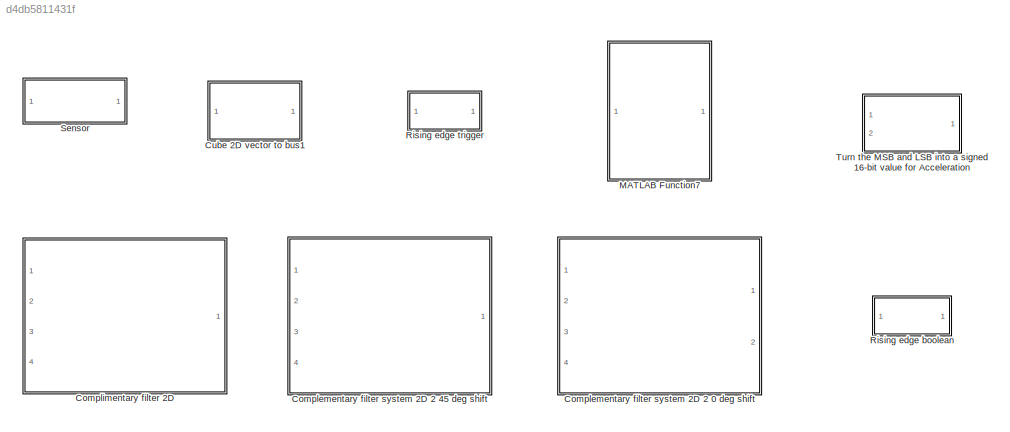
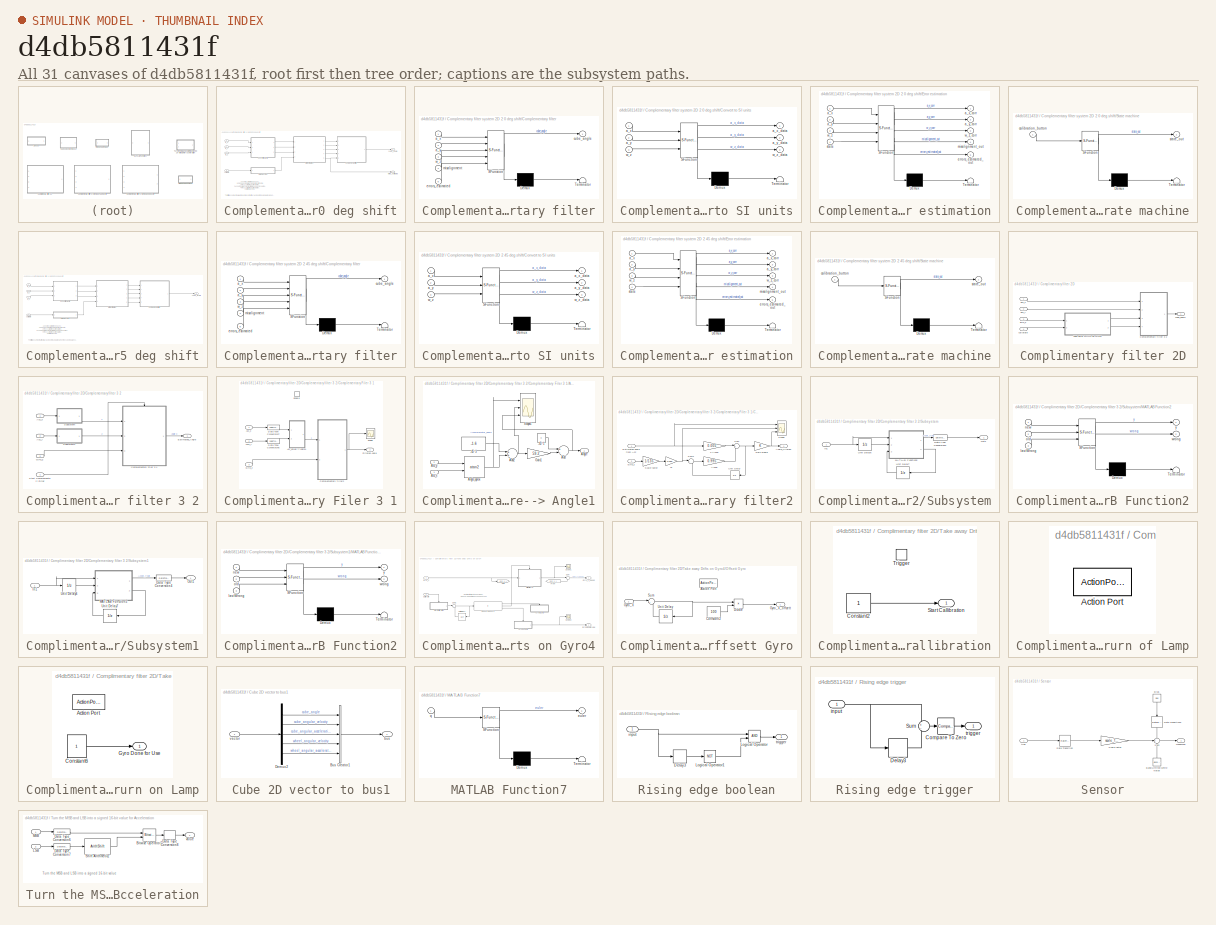
[diagram: thumbnail index - all 31 canvases of the model, root first then tree order]
MODEL slx_d4db5811431f
KIND library
CONFIG AbsTol = auto
CONFIG EnableMultiTasking = on
CONFIG FixedStep = auto
CONFIG MaxStep = auto
CONFIG MinStep = auto
CONFIG RelTol = 1e-3
CONFIG SampleTimeConstraint = Unconstrained
CONFIG Solver = VariableStepAuto
CONFIG SolverName = VariableStepAuto
CONFIG StartTime = 0.0
CONFIG StopTime = 10.0
BLOCK [SubSystem] Complementary filter system 2D 2 0 deg shift
  Ports = [4, 2]
  RequestExecContextInheritance = off
  Variant = off
BLOCK [SubSystem] Complementary filter system 2D 2 0 deg shift/Complementary filter
  ErrorFcn = Stateflow.Translate.translate
  PermitHierarchicalResolution = ExplicitOnly
  Ports = [5, 1]
  RequestExecContextInheritance = off
  SFBlockType = MATLAB Function
  TreatAsAtomicUnit = on
  Variant = off
BLOCK [Demux] Complementary filter system 2D 2 0 deg shift/Complementary filter/ Demux 
  Outputs = 1
  Ports = [1, 1]
BLOCK [S-Function] Complementary filter system 2D 2 0 deg shift/Complementary filter/ SFunction 
  EnableBusSupport = off
  FunctionName = sf_sfun
  PortCounts = [5 2]
  Ports = [5, 2]
  SFcnIsStateOwnerBlock = off
  SFunctionDeploymentMode = off
  Tag = Stateflow S-Function cube_lib 3
BLOCK [Terminator] Complementary filter system 2D 2 0 deg shift/Complementary filter/ Terminator 
BLOCK [Inport] Complementary filter system 2D 2 0 deg shift/Complementary filter/a_x
  IconDisplay = Port number
BLOCK [Inport] Complementary filter system 2D 2 0 deg shift/Complementary filter/a_y
  IconDisplay = Port number
  Port = 2
BLOCK [Outport] Complementary filter system 2D 2 0 deg shift/Complementary filter/cube_angle
  IconDisplay = Port number
BLOCK [Inport] Complementary filter system 2D 2 0 deg shift/Complementary filter/errors_estimated
  IconDisplay = Port number
  Port = 5
BLOCK [Inport] Complementary filter system 2D 2 0 deg shift/Complementary filter/misalignment
  IconDisplay = Port number
  Port = 4
BLOCK [Inport] Complementary filter system 2D 2 0 deg shift/Complementary filter/w_z
  IconDisplay = Port number
  Port = 3
BLOCK [SubSystem] Complementary filter system 2D 2 0 deg shift/Convert to SI units
  ErrorFcn = Stateflow.Translate.translate
  PermitHierarchicalResolution = ExplicitOnly
  Ports = [3, 3]
  RequestExecContextInheritance = off
  SFBlockType = MATLAB Function
  TreatAsAtomicUnit = on
  Variant = off
BLOCK [Demux] Complementary filter system 2D 2 0 deg shift/Convert to SI units/ Demux 
  Outputs = 1
  Ports = [1, 1]
BLOCK [S-Function] Complementary filter system 2D 2 0 deg shift/Convert to SI units/ SFunction 
  EnableBusSupport = off
  FunctionName = sf_sfun
  Parameters = deg_
  PortCounts = [3 4]
  Ports = [3, 4]
  SFcnIsStateOwnerBlock = off
  SFunctionDeploymentMode = off
  Tag = Stateflow S-Function cube_lib 4
BLOCK [Terminator] Complementary filter system 2D 2 0 deg shift/Convert to SI units/ Terminator 
BLOCK [Inport] Complementary filter system 2D 2 0 deg shift/Convert to SI units/a_x
  IconDisplay = Port number
BLOCK [Outport] Complementary filter system 2D 2 0 deg shift/Convert to SI units/a_x_data
  IconDisplay = Port number
BLOCK [Inport] Complementary filter system 2D 2 0 deg shift/Convert to SI units/a_y
  IconDisplay = Port number
  Port = 2
BLOCK [Outport] Complementary filter system 2D 2 0 deg shift/Convert to SI units/a_y_data
  IconDisplay = Port number
  Port = 2
BLOCK [Inport] Complementary filter system 2D 2 0 deg shift/Convert to SI units/w_z
  IconDisplay = Port number
  Port = 3
BLOCK [Outport] Complementary filter system 2D 2 0 deg shift/Convert to SI units/w_z_data
  IconDisplay = Port number
  Port = 3
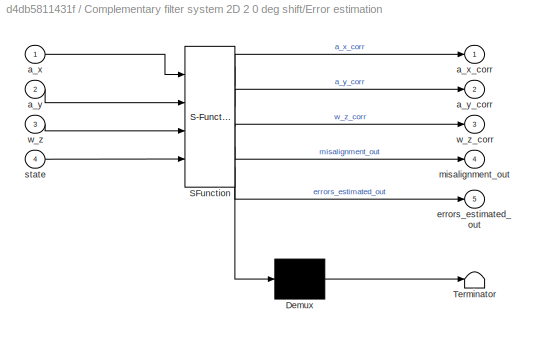
BLOCK [SubSystem] Complementary filter system 2D 2 0 deg shift/Error estimation
  ErrorFcn = Stateflow.Translate.translate
  PermitHierarchicalResolution = ExplicitOnly
  Ports = [4, 5]
  RequestExecContextInheritance = off
  SFBlockType = MATLAB Function
  TreatAsAtomicUnit = on
  Variant = off
BLOCK [Demux] Complementary filter system 2D 2 0 deg shift/Error estimation/ Demux 
  Outputs = 1
  Ports = [1, 1]
BLOCK [S-Function] Complementary filter system 2D 2 0 deg shift/Error estimation/ SFunction 
  EnableBusSupport = off
  FunctionName = sf_sfun
  PortCounts = [4 6]
  Ports = [4, 6]
  SFcnIsStateOwnerBlock = off
  SFunctionDeploymentMode = off
  Tag = Stateflow S-Function cube_lib 5
BLOCK [Terminator] Complementary filter system 2D 2 0 deg shift/Error estimation/ Terminator 
BLOCK [Inport] Complementary filter system 2D 2 0 deg shift/Error estimation/a_x
  IconDisplay = Port number
BLOCK [Outport] Complementary filter system 2D 2 0 deg shift/Error estimation/a_x_corr
  IconDisplay = Port number
BLOCK [Inport] Complementary filter system 2D 2 0 deg shift/Error estimation/a_y
  IconDisplay = Port number
  Port = 2
BLOCK [Outport] Complementary filter system 2D 2 0 deg shift/Error estimation/a_y_corr
  IconDisplay = Port number
  Port = 2
BLOCK [Outport] Complementary filter system 2D 2 0 deg shift/Error estimation/errors_estimated_out
  IconDisplay = Port number
  Port = 5
BLOCK [Outport] Complementary filter system 2D 2 0 deg shift/Error estimation/misalignment_out
  IconDisplay = Port number
  Port = 4
BLOCK [Inport] Complementary filter system 2D 2 0 deg shift/Error estimation/state
  IconDisplay = Port number
  Port = 4
BLOCK [Inport] Complementary filter system 2D 2 0 deg shift/Error estimation/w_z
  IconDisplay = Port number
  Port = 3
BLOCK [Outport] Complementary filter system 2D 2 0 deg shift/Error estimation/w_z_corr
  IconDisplay = Port number
  Port = 3
BLOCK [SubSystem] Complementary filter system 2D 2 0 deg shift/State machine
  ErrorFcn = Stateflow.Translate.translate
  PermitHierarchicalResolution = ExplicitOnly
  Ports = [1, 1]
  RequestExecContextInheritance = off
  SFBlockType = MATLAB Function
  TreatAsAtomicUnit = on
  Variant = off
BLOCK [Demux] Complementary filter system 2D 2 0 deg shift/State machine/ Demux 
  Outputs = 1
  Ports = [1, 1]
BLOCK [S-Function] Complementary filter system 2D 2 0 deg shift/State machine/ SFunction 
  EnableBusSupport = off
  FunctionName = sf_sfun
  PortCounts = [1 2]
  Ports = [1, 2]
  SFcnIsStateOwnerBlock = off
  SFunctionDeploymentMode = off
  Tag = Stateflow S-Function cube_lib 6
BLOCK [Terminator] Complementary filter system 2D 2 0 deg shift/State machine/ Terminator 
BLOCK [Inport] Complementary filter system 2D 2 0 deg shift/State machine/calibration_button
  IconDisplay = Port number
BLOCK [Outport] Complementary filter system 2D 2 0 deg shift/State machine/state_out
  IconDisplay = Port number
BLOCK [Inport] Complementary filter system 2D 2 0 deg shift/a_x
  IconDisplay = Port number
BLOCK [Inport] Complementary filter system 2D 2 0 deg shift/a_y
  IconDisplay = Port number
  Port = 2
BLOCK [Inport] Complementary filter system 2D 2 0 deg shift/calibrate
  IconDisplay = Port number
  Port = 4
BLOCK [Outport] Complementary filter system 2D 2 0 deg shift/cube_angle
  IconDisplay = Port number
BLOCK [Outport] Complementary filter system 2D 2 0 deg shift/errors_estimated
  IconDisplay = Port number
  Port = 2
BLOCK [Inport] Complementary filter system 2D 2 0 deg shift/w_z
  IconDisplay = Port number
  Port = 3
BLOCK [SubSystem] Complementary filter system 2D 2 45 deg shift
  Ports = [4, 1]
  RequestExecContextInheritance = off
  Variant = off
BLOCK [SubSystem] Complementary filter system 2D 2 45 deg shift/Complementary filter
  ErrorFcn = Stateflow.Translate.translate
  PermitHierarchicalResolution = ExplicitOnly
  Ports = [5, 1]
  RequestExecContextInheritance = off
  SFBlockType = MATLAB Function
  TreatAsAtomicUnit = on
  Variant = off
BLOCK [Demux] Complementary filter system 2D 2 45 deg shift/Complementary filter/ Demux 
  Outputs = 1
  Ports = [1, 1]
BLOCK [S-Function] Complementary filter system 2D 2 45 deg shift/Complementary filter/ SFunction 
  EnableBusSupport = off
  FunctionName = sf_sfun
  PortCounts = [5 2]
  Ports = [5, 2]
  SFcnIsStateOwnerBlock = off
  SFunctionDeploymentMode = off
  Tag = Stateflow S-Function cube_lib 10
BLOCK [Terminator] Complementary filter system 2D 2 45 deg shift/Complementary filter/ Terminator 
BLOCK [Inport] Complementary filter system 2D 2 45 deg shift/Complementary filter/a_x
  IconDisplay = Port number
BLOCK [Inport] Complementary filter system 2D 2 45 deg shift/Complementary filter/a_y
  IconDisplay = Port number
  Port = 2
BLOCK [Outport] Complementary filter system 2D 2 45 deg shift/Complementary filter/cube_angle
  IconDisplay = Port number
BLOCK [Inport] Complementary filter system 2D 2 45 deg shift/Complementary filter/errors_estimated
  IconDisplay = Port number
  Port = 5
BLOCK [Inport] Complementary filter system 2D 2 45 deg shift/Complementary filter/misalignment
  IconDisplay = Port number
  Port = 4
BLOCK [Inport] Complementary filter system 2D 2 45 deg shift/Complementary filter/w_z
  IconDisplay = Port number
  Port = 3
BLOCK [SubSystem] Complementary filter system 2D 2 45 deg shift/Convert to SI units
  ErrorFcn = Stateflow.Translate.translate
  PermitHierarchicalResolution = ExplicitOnly
  Ports = [3, 3]
  RequestExecContextInheritance = off
  SFBlockType = MATLAB Function
  TreatAsAtomicUnit = on
  Variant = off
BLOCK [Demux] Complementary filter system 2D 2 45 deg shift/Convert to SI units/ Demux 
  Outputs = 1
  Ports = [1, 1]
BLOCK [S-Function] Complementary filter system 2D 2 45 deg shift/Convert to SI units/ SFunction 
  EnableBusSupport = off
  FunctionName = sf_sfun
  PortCounts = [3 4]
  Ports = [3, 4]
  SFcnIsStateOwnerBlock = off
  SFunctionDeploymentMode = off
  Tag = Stateflow S-Function cube_lib 11
BLOCK [Terminator] Complementary filter system 2D 2 45 deg shift/Convert to SI units/ Terminator 
BLOCK [Inport] Complementary filter system 2D 2 45 deg shift/Convert to SI units/a_x
  IconDisplay = Port number
BLOCK [Outport] Complementary filter system 2D 2 45 deg shift/Convert to SI units/a_x_data
  IconDisplay = Port number
BLOCK [Inport] Complementary filter system 2D 2 45 deg shift/Convert to SI units/a_y
  IconDisplay = Port number
  Port = 2
BLOCK [Outport] Complementary filter system 2D 2 45 deg shift/Convert to SI units/a_y_data
  IconDisplay = Port number
  Port = 2
BLOCK [Inport] Complementary filter system 2D 2 45 deg shift/Convert to SI units/w_z
  IconDisplay = Port number
  Port = 3
BLOCK [Outport] Complementary filter system 2D 2 45 deg shift/Convert to SI units/w_z_data
  IconDisplay = Port number
  Port = 3
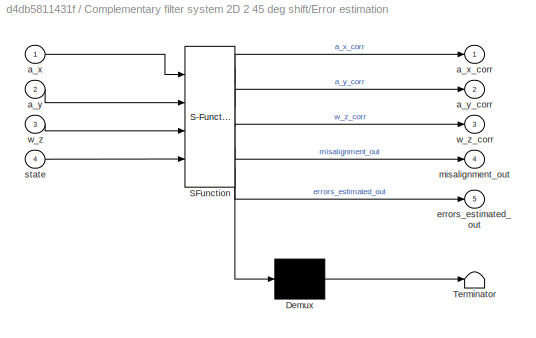
BLOCK [SubSystem] Complementary filter system 2D 2 45 deg shift/Error estimation
  ErrorFcn = Stateflow.Translate.translate
  PermitHierarchicalResolution = ExplicitOnly
  Ports = [4, 5]
  RequestExecContextInheritance = off
  SFBlockType = MATLAB Function
  TreatAsAtomicUnit = on
  Variant = off
BLOCK [Demux] Complementary filter system 2D 2 45 deg shift/Error estimation/ Demux 
  Outputs = 1
  Ports = [1, 1]
BLOCK [S-Function] Complementary filter system 2D 2 45 deg shift/Error estimation/ SFunction 
  EnableBusSupport = off
  FunctionName = sf_sfun
  PortCounts = [4 6]
  Ports = [4, 6]
  SFcnIsStateOwnerBlock = off
  SFunctionDeploymentMode = off
  Tag = Stateflow S-Function cube_lib 12
BLOCK [Terminator] Complementary filter system 2D 2 45 deg shift/Error estimation/ Terminator 
BLOCK [Inport] Complementary filter system 2D 2 45 deg shift/Error estimation/a_x
  IconDisplay = Port number
BLOCK [Outport] Complementary filter system 2D 2 45 deg shift/Error estimation/a_x_corr
  IconDisplay = Port number
BLOCK [Inport] Complementary filter system 2D 2 45 deg shift/Error estimation/a_y
  IconDisplay = Port number
  Port = 2
BLOCK [Outport] Complementary filter system 2D 2 45 deg shift/Error estimation/a_y_corr
  IconDisplay = Port number
  Port = 2
BLOCK [Outport] Complementary filter system 2D 2 45 deg shift/Error estimation/errors_estimated_out
  IconDisplay = Port number
  Port = 5
BLOCK [Outport] Complementary filter system 2D 2 45 deg shift/Error estimation/misalignment_out
  IconDisplay = Port number
  Port = 4
BLOCK [Inport] Complementary filter system 2D 2 45 deg shift/Error estimation/state
  IconDisplay = Port number
  Port = 4
BLOCK [Inport] Complementary filter system 2D 2 45 deg shift/Error estimation/w_z
  IconDisplay = Port number
  Port = 3
BLOCK [Outport] Complementary filter system 2D 2 45 deg shift/Error estimation/w_z_corr
  IconDisplay = Port number
  Port = 3
BLOCK [SubSystem] Complementary filter system 2D 2 45 deg shift/State machine
  ErrorFcn = Stateflow.Translate.translate
  PermitHierarchicalResolution = ExplicitOnly
  Ports = [1, 1]
  RequestExecContextInheritance = off
  SFBlockType = MATLAB Function
  TreatAsAtomicUnit = on
  Variant = off
BLOCK [Demux] Complementary filter system 2D 2 45 deg shift/State machine/ Demux 
  Outputs = 1
  Ports = [1, 1]
BLOCK [S-Function] Complementary filter system 2D 2 45 deg shift/State machine/ SFunction 
  EnableBusSupport = off
  FunctionName = sf_sfun
  PortCounts = [1 2]
  Ports = [1, 2]
  SFcnIsStateOwnerBlock = off
  SFunctionDeploymentMode = off
  Tag = Stateflow S-Function cube_lib 13
BLOCK [Terminator] Complementary filter system 2D 2 45 deg shift/State machine/ Terminator 
BLOCK [Inport] Complementary filter system 2D 2 45 deg shift/State machine/calibration_button
  IconDisplay = Port number
BLOCK [Outport] Complementary filter system 2D 2 45 deg shift/State machine/state_out
  IconDisplay = Port number
BLOCK [Inport] Complementary filter system 2D 2 45 deg shift/a_x
  IconDisplay = Port number
BLOCK [Inport] Complementary filter system 2D 2 45 deg shift/a_y
  IconDisplay = Port number
  Port = 2
BLOCK [Inport] Complementary filter system 2D 2 45 deg shift/calibrate
  IconDisplay = Port number
  Port = 4
BLOCK [Outport] Complementary filter system 2D 2 45 deg shift/cube_angle
  IconDisplay = Port number
BLOCK [Inport] Complementary filter system 2D 2 45 deg shift/w_z
  IconDisplay = Port number
  Port = 3
BLOCK [SubSystem] Complimentary filter 2D
  Ports = [4, 1]
  RequestExecContextInheritance = off
  Variant = off
BLOCK [SubSystem] Complimentary filter 2D/Complementary filter 3 2
  Ports = [4, 1]
  RequestExecContextInheritance = off
  Variant = off
BLOCK [Inport] Complimentary filter 2D/Complementary filter 3 2/Acc_x
  IconDisplay = Port number
BLOCK [Inport] Complimentary filter 2D/Complementary filter 3 2/Acc_y
  IconDisplay = Port number
  Port = 2
BLOCK [SubSystem] Complimentary filter 2D/Complementary filter 3 2/Complementary Filer 3 1
  Ports = [3, 1, 1]
  RequestExecContextInheritance = off
  Variant = off
BLOCK [SubSystem] Complimentary filter 2D/Complementary filter 3 2/Complementary Filer 3 1/Acc_value--> Angle1
  Ports = [2, 1]
  RequestExecContextInheritance = off
  Variant = off
BLOCK [Constant] Complimentary filter 2D/Complementary filter 3 2/Complementary Filer 3 1/Acc_value--> Angle1/-45 °1
  Value = 0
BLOCK [Constant] Complimentary filter 2D/Complementary filter 3 2/Complementary Filer 3 1/Acc_value--> Angle1/-45 °3
  Value = -1.6
BLOCK [Inport] Complimentary filter 2D/Complementary filter 3 2/Complementary Filer 3 1/Acc_value--> Angle1/Acc_x
  IconDisplay = Port number
BLOCK [Inport] Complimentary filter 2D/Complementary filter 3 2/Complementary Filer 3 1/Acc_value--> Angle1/Acc_y
  IconDisplay = Port number
  Port = 2
BLOCK [Sum] Complimentary filter 2D/Complementary filter 3 2/Complementary Filer 3 1/Acc_value--> Angle1/Add
  InputSameDT = off
  Inputs = +-
  OutDataTypeStr = Inherit: Inherit via internal rule
  Ports = [2, 1]
  SaturateOnIntegerOverflow = off
BLOCK [Sum] Complimentary filter 2D/Complementary filter 3 2/Complementary Filer 3 1/Acc_value--> Angle1/Add2
  InputSameDT = off
  OutDataTypeStr = Inherit: Inherit via internal rule
  Ports = [2, 1]
  SaturateOnIntegerOverflow = off
BLOCK [Outport] Complimentary filter 2D/Complementary filter 3 2/Complementary Filer 3 1/Acc_value--> Angle1/Angle
  IconDisplay = Port number
BLOCK [Trigonometry] Complimentary filter 2D/Complementary filter 3 2/Complementary Filer 3 1/Acc_value--> Angle1/Angle_aprox
  Operator = atan2
  Ports = [2, 1]
BLOCK [Gain] Complimentary filter 2D/Complementary filter 3 2/Complementary Filer 3 1/Acc_value--> Angle1/Gain1
  Gain = 59.2
  OutDataTypeStr = Inherit: Inherit via internal rule
  ParamDataTypeStr = Inherit: Inherit via internal rule
  SaturateOnIntegerOverflow = off
BLOCK [Scope] Complimentary filter 2D/Complementary filter 3 2/Complementary Filer 3 1/Acc_value--> Angle1/Scope1
  NumInputPorts = 3
  Ports = [3]
  ScopeSpecificationString = Simulink.scopes.TimeScopeBlockCfg('CurrentConfiguration', extmgr.ConfigurationSet(extmgr.Configuration('Core','General UI',true),extmgr.Configuration('Core','Source UI',true),extmgr.Configuration('Sources','WiredSimulink',true,'DataLoggingVariableName','ScopeData3'),extmgr.Configuration('Visuals','Time Domain',true,'SerializedDisplays',{struct('MinYLimReal','-82.06686','MaxYLimReal','269.34822','Y...<+1440ch>
BLOCK [Inport] Complimentary filter 2D/Complementary filter 3 2/Complementary Filer 3 1/Acc_x
  IconDisplay = Port number
BLOCK [Inport] Complimentary filter 2D/Complementary filter 3 2/Complementary Filer 3 1/Axcc_y
  IconDisplay = Port number
  Port = 2
BLOCK [SubSystem] Complimentary filter 2D/Complementary filter 3 2/Complementary Filer 3 1/Complementary filter2
  Ports = [2, 1]
  RequestExecContextInheritance = off
  Variant = off
BLOCK [Gain] Complimentary filter 2D/Complementary filter 3 2/Complementary Filer 3 1/Complementary filter2/1-Alpha
  Gain = 0.005
  OutDataTypeStr = Inherit: Inherit via internal rule
  ParamDataTypeStr = Inherit: Inherit via internal rule
  SaturateOnIntegerOverflow = off
BLOCK [Gain] Complimentary filter 2D/Complementary filter 3 2/Complementary Filer 3 1/Complementary filter2/Alpha
  Gain = 0.995
  OutDataTypeStr = Inherit: Inherit via internal rule
  ParamDataTypeStr = Inherit: Inherit via internal rule
  SaturateOnIntegerOverflow = off
BLOCK [Outport] Complimentary filter 2D/Complementary filter 3 2/Complementary Filer 3 1/Complementary filter2/Angle_filtered
  IconDisplay = Port number
BLOCK [Inport] Complimentary filter 2D/Complementary filter 3 2/Complementary Filer 3 1/Complementary filter2/Estimated angle from Acc
  IconDisplay = Port number
BLOCK [Gain] Complimentary filter 2D/Complementary filter 3 2/Complementary Filer 3 1/Complementary filter2/Gain weard
  OutDataTypeStr = Inherit: Inherit via internal rule
  ParamDataTypeStr = Inherit: Inherit via internal rule
  SaturateOnIntegerOverflow = off
BLOCK [Inport] Complimentary filter 2D/Complementary filter 3 2/Complementary Filer 3 1/Complementary filter2/Gyro_z
  IconDisplay = Port number
  Port = 2
BLOCK [Gain] Complimentary filter 2D/Complementary filter 3 2/Complementary Filer 3 1/Complementary filter2/Scale factor
  Gain = 1/135
  OutDataTypeStr = Inherit: Inherit via internal rule
  ParamDataTypeStr = Inherit: Inherit via internal rule
  SaturateOnIntegerOverflow = off
BLOCK [Scope] Complimentary filter 2D/Complementary filter 3 2/Complementary Filer 3 1/Complementary filter2/Scope
  NumInputPorts = 3
  Ports = [3]
  ScopeSpecificationString = Simulink.scopes.TimeScopeBlockCfg('CurrentConfiguration', extmgr.ConfigurationSet(extmgr.Configuration('Core','General UI',true),extmgr.Configuration('Core','Source UI',true),extmgr.Configuration('Sources','WiredSimulink',true,'DataLoggingVariableName','ScopeData2'),extmgr.Configuration('Visuals','Time Domain',true,'SerializedDisplays',{struct('MinYLimReal','-82.06686','MaxYLimReal','269.34822','Y...<+1483ch>
BLOCK [Sum] Complimentary filter 2D/Complementary filter 3 2/Complementary Filer 3 1/Complementary filter2/Sum
  IconShape = round
  InputSameDT = off
  Inputs = |++
  OutDataTypeStr = Inherit: Inherit via internal rule
  Ports = [2, 1]
  SaturateOnIntegerOverflow = off
BLOCK [Sum] Complimentary filter 2D/Complementary filter 3 2/Complementary Filer 3 1/Complementary filter2/Sum1
  IconShape = round
  InputSameDT = off
  Inputs = |++
  OutDataTypeStr = Inherit: Inherit via internal rule
  Ports = [2, 1]
  SaturateOnIntegerOverflow = off
BLOCK [Gain] Complimentary filter 2D/Complementary filter 3 2/Complementary Filer 3 1/Complementary filter2/Ts
  Gain = 0.002
  OutDataTypeStr = Inherit: Inherit via internal rule
  ParamDataTypeStr = Inherit: Inherit via internal rule
  SaturateOnIntegerOverflow = off
BLOCK [UnitDelay] Complimentary filter 2D/Complementary filter 3 2/Complementary Filer 3 1/Complementary filter2/Unit Delay
  InputProcessing = Elements as channels (sample based)
  SampleTime = -1
BLOCK [DataTypeConversion] Complimentary filter 2D/Complementary filter 3 2/Complementary Filer 3 1/Data Type Conversion5
  RndMeth = Floor
  SaturateOnIntegerOverflow = off
BLOCK [DataTypeConversion] Complimentary filter 2D/Complementary filter 3 2/Complementary Filer 3 1/Data Type Conversion7
  RndMeth = Floor
  SaturateOnIntegerOverflow = off
BLOCK [EnablePort] Complimentary filter 2D/Complementary filter 3 2/Complementary Filer 3 1/Enable
  Ports = []
  StatesWhenEnabling = reset
BLOCK [Outport] Complimentary filter 2D/Complementary filter 3 2/Complementary Filer 3 1/Filtered Angle
  IconDisplay = Port number
  InitialOutput = [0]
  OutputWhenDisabled = reset
BLOCK [Inport] Complimentary filter 2D/Complementary filter 3 2/Complementary Filer 3 1/Gyro_z
  IconDisplay = Port number
  Port = 3
BLOCK [Scope] Complimentary filter 2D/Complementary filter 3 2/Complementary Filer 3 1/Scope
  NumInputPorts = 1
  Ports = [1]
  ScopeSpecificationString = Simulink.scopes.TimeScopeBlockCfg('CurrentConfiguration', extmgr.ConfigurationSet(extmgr.Configuration('Core','General UI',true),extmgr.Configuration('Core','Source UI',true),extmgr.Configuration('Sources','WiredSimulink',true,'DataLoggingVariableName','ScopeData2'),extmgr.Configuration('Visuals','Time Domain',true,'SerializedDisplays',{struct('MinYLimReal','-60.84821','MaxYLimReal','99.99965','YL...<+1457ch>
BLOCK [Outport] Complimentary filter 2D/Complementary filter 3 2/Estimated_Angle
  IconDisplay = Port number
BLOCK [Inport] Complimentary filter 2D/Complementary filter 3 2/Gyro_z
  IconDisplay = Port number
  Port = 3
BLOCK [Inport] Complimentary filter 2D/Complementary filter 3 2/Start Complementary Filter 
  IconDisplay = Port number
  Port = 4
BLOCK [SubSystem] Complimentary filter 2D/Complementary filter 3 2/Subsystem
  Ports = [1, 1]
  RequestExecContextInheritance = off
  Variant = off
BLOCK [DataTypeConversion] Complimentary filter 2D/Complementary filter 3 2/Subsystem/Data Type Conversion4
  RndMeth = Floor
  SaturateOnIntegerOverflow = off
BLOCK [Inport] Complimentary filter 2D/Complementary filter 3 2/Subsystem/In1
  IconDisplay = Port number
BLOCK [SubSystem] Complimentary filter 2D/Complementary filter 3 2/Subsystem/MATLAB Function2
  ErrorFcn = Stateflow.Translate.translate
  PermitHierarchicalResolution = ExplicitOnly
  Ports = [3, 2]
  RequestExecContextInheritance = off
  SFBlockType = MATLAB Function
  TreatAsAtomicUnit = on
  Variant = off
BLOCK [Demux] Complimentary filter 2D/Complementary filter 3 2/Subsystem/MATLAB Function2/ Demux 
  Outputs = 1
  Ports = [1, 1]
BLOCK [S-Function] Complimentary filter 2D/Complementary filter 3 2/Subsystem/MATLAB Function2/ SFunction 
  EnableBusSupport = off
  FunctionName = sf_sfun
  PortCounts = [3 3]
  Ports = [3, 3]
  SFcnIsStateOwnerBlock = off
  SFunctionDeploymentMode = off
  Tag = Stateflow S-Function cube_lib 18
BLOCK [Terminator] Complimentary filter 2D/Complementary filter 3 2/Subsystem/MATLAB Function2/ Terminator 
BLOCK [Inport] Complimentary filter 2D/Complementary filter 3 2/Subsystem/MATLAB Function2/lastWrong
  IconDisplay = Port number
  Port = 3
BLOCK [Inport] Complimentary filter 2D/Complementary filter 3 2/Subsystem/MATLAB Function2/new
  IconDisplay = Port number
BLOCK [Inport] Complimentary filter 2D/Complementary filter 3 2/Subsystem/MATLAB Function2/old
  IconDisplay = Port number
  Port = 2
BLOCK [Outport] Complimentary filter 2D/Complementary filter 3 2/Subsystem/MATLAB Function2/wrong
  IconDisplay = Port number
  Port = 2
BLOCK [Outport] Complimentary filter 2D/Complementary filter 3 2/Subsystem/MATLAB Function2/y
  IconDisplay = Port number
BLOCK [Outport] Complimentary filter 2D/Complementary filter 3 2/Subsystem/Out1
  IconDisplay = Port number
BLOCK [UnitDelay] Complimentary filter 2D/Complementary filter 3 2/Subsystem/Unit Delay6
  InitialCondition = -40.45
  InputProcessing = Elements as channels (sample based)
  SampleTime = -1
BLOCK [UnitDelay] Complimentary filter 2D/Complementary filter 3 2/Subsystem/Unit Delay7
  InputProcessing = Elements as channels (sample based)
  SampleTime = -1
BLOCK [SubSystem] Complimentary filter 2D/Complementary filter 3 2/Subsystem1
  Ports = [1, 1]
  RequestExecContextInheritance = off
  Variant = off
BLOCK [DataTypeConversion] Complimentary filter 2D/Complementary filter 3 2/Subsystem1/Data Type Conversion4
  RndMeth = Floor
  SaturateOnIntegerOverflow = off
BLOCK [Inport] Complimentary filter 2D/Complementary filter 3 2/Subsystem1/In1
  IconDisplay = Port number
BLOCK [SubSystem] Complimentary filter 2D/Complementary filter 3 2/Subsystem1/MATLAB Function2
  ErrorFcn = Stateflow.Translate.translate
  PermitHierarchicalResolution = ExplicitOnly
  Ports = [3, 2]
  RequestExecContextInheritance = off
  SFBlockType = MATLAB Function
  TreatAsAtomicUnit = on
  Variant = off
BLOCK [Demux] Complimentary filter 2D/Complementary filter 3 2/Subsystem1/MATLAB Function2/ Demux 
  Outputs = 1
  Ports = [1, 1]
BLOCK [S-Function] Complimentary filter 2D/Complementary filter 3 2/Subsystem1/MATLAB Function2/ SFunction 
  EnableBusSupport = off
  FunctionName = sf_sfun
  PortCounts = [3 3]
  Ports = [3, 3]
  SFcnIsStateOwnerBlock = off
  SFunctionDeploymentMode = off
  Tag = Stateflow S-Function cube_lib 19
BLOCK [Terminator] Complimentary filter 2D/Complementary filter 3 2/Subsystem1/MATLAB Function2/ Terminator 
BLOCK [Inport] Complimentary filter 2D/Complementary filter 3 2/Subsystem1/MATLAB Function2/lastWrong
  IconDisplay = Port number
  Port = 3
BLOCK [Inport] Complimentary filter 2D/Complementary filter 3 2/Subsystem1/MATLAB Function2/new
  IconDisplay = Port number
BLOCK [Inport] Complimentary filter 2D/Complementary filter 3 2/Subsystem1/MATLAB Function2/old
  IconDisplay = Port number
  Port = 2
BLOCK [Outport] Complimentary filter 2D/Complementary filter 3 2/Subsystem1/MATLAB Function2/wrong
  IconDisplay = Port number
  Port = 2
BLOCK [Outport] Complimentary filter 2D/Complementary filter 3 2/Subsystem1/MATLAB Function2/y
  IconDisplay = Port number
BLOCK [Outport] Complimentary filter 2D/Complementary filter 3 2/Subsystem1/Out1
  IconDisplay = Port number
BLOCK [UnitDelay] Complimentary filter 2D/Complementary filter 3 2/Subsystem1/Unit Delay6
  InitialCondition = -40.45
  InputProcessing = Elements as channels (sample based)
  SampleTime = -1
BLOCK [UnitDelay] Complimentary filter 2D/Complementary filter 3 2/Subsystem1/Unit Delay7
  InputProcessing = Elements as channels (sample based)
  SampleTime = -1
BLOCK [SubSystem] Complimentary filter 2D/Take away Drifts on Gyro4
  Ports = [2, 2]
  RequestExecContextInheritance = off
  Variant = off
BLOCK [Inport] Complimentary filter 2D/Take away Drifts on Gyro4/Calibrate
  IconDisplay = Port number
  Port = 2
BLOCK [If] Complimentary filter 2D/Take away Drifts on Gyro4/Do average zero
  ElseIfExpressions = u1 >= 500 &  u1 <= 600
  IfExpression = u1 <= 499
  Ports = [1, 3]
BLOCK [From] Complimentary filter 2D/Take away Drifts on Gyro4/From
  GotoTag = Gyro_X_1
BLOCK [Goto] Complimentary filter 2D/Take away Drifts on Gyro4/Goto
  GotoTag = Gyro_X_1
BLOCK [Outport] Complimentary filter 2D/Take away Drifts on Gyro4/Gyro Done for Use
  IconDisplay = Port number
  Port = 2
BLOCK [Inport] Complimentary filter 2D/Take away Drifts on Gyro4/Gyro_z
  IconDisplay = Port number
BLOCK [Outport] Complimentary filter 2D/Take away Drifts on Gyro4/Gyro_z_based
  IconDisplay = Port number
BLOCK [SubSystem] Complimentary filter 2D/Take away Drifts on Gyro4/Offsett Gyro
  Ports = [1, 1, 0, 0, 0, 0, 0, 1]
  RequestExecContextInheritance = off
  Variant = off
BLOCK [ActionPort] Complimentary filter 2D/Take away Drifts on Gyro4/Offsett Gyro/Action Port
BLOCK [Constant] Complimentary filter 2D/Take away Drifts on Gyro4/Offsett Gyro/Constant2
  Value = 100
BLOCK [Product] Complimentary filter 2D/Take away Drifts on Gyro4/Offsett Gyro/Divide
  InputSameDT = off
  Inputs = */
  OutDataTypeStr = Inherit: Inherit via internal rule
  Ports = [2, 1]
  RndMeth = Floor
  SaturateOnIntegerOverflow = off
BLOCK [Inport] Complimentary filter 2D/Take away Drifts on Gyro4/Offsett Gyro/Gyro_X
  IconDisplay = Port number
BLOCK [Outport] Complimentary filter 2D/Take away Drifts on Gyro4/Offsett Gyro/Gyro_X_offsett
  IconDisplay = Port number
BLOCK [Sum] Complimentary filter 2D/Take away Drifts on Gyro4/Offsett Gyro/Sum
  IconShape = round
  InputSameDT = off
  Inputs = |++
  OutDataTypeStr = Inherit: Inherit via internal rule
  Ports = [2, 1]
  SaturateOnIntegerOverflow = off
BLOCK [UnitDelay] Complimentary filter 2D/Take away Drifts on Gyro4/Offsett Gyro/Unit Delay
  InputProcessing = Elements as channels (sample based)
  SampleTime = -1
BLOCK [Scope] Complimentary filter 2D/Take away Drifts on Gyro4/Scope1
  NumInputPorts = 1
  Ports = [1]
  ScopeSpecificationString = Simulink.scopes.TimeScopeBlockCfg('CurrentConfiguration', extmgr.ConfigurationSet(extmgr.Configuration('Core','General UI',true),extmgr.Configuration('Core','Source UI',true),extmgr.Configuration('Sources','WiredSimulink',true,'DataLoggingVariableName','ScopeData4'),extmgr.Configuration('Visuals','Time Domain',true,'SerializedDisplays',{struct('MinYLimReal','-1.00000','MaxYLimReal','1.00000','YLab...<+1444ch>
BLOCK [Scope] Complimentary filter 2D/Take away Drifts on Gyro4/Scope2
  NumInputPorts = 1
  Ports = [1]
  ScopeSpecificationString = Simulink.scopes.TimeScopeBlockCfg('CurrentConfiguration', extmgr.ConfigurationSet(extmgr.Configuration('Core','General UI',true),extmgr.Configuration('Core','Source UI',true),extmgr.Configuration('Sources','WiredSimulink',true,'DataLoggingVariableName','ScopeData5'),extmgr.Configuration('Visuals','Time Domain',true,'SerializedDisplays',{struct('MinYLimReal','-0.125','MaxYLimReal','1.125','YLabelRe...<+1359ch>
BLOCK [SubSystem] Complimentary filter 2D/Take away Drifts on Gyro4/Start Callibration
  Ports = [0, 1, 0, 1]
  RequestExecContextInheritance = off
  Variant = off
BLOCK [Constant] Complimentary filter 2D/Take away Drifts on Gyro4/Start Callibration/Constant2
BLOCK [Outport] Complimentary filter 2D/Take away Drifts on Gyro4/Start Callibration/Start Callibration
  IconDisplay = Port number
  InitialOutput = [0]
BLOCK [TriggerPort] Complimentary filter 2D/Take away Drifts on Gyro4/Start Callibration/Trigger
  PortDimensions = 1
  Ports = []
  StatesWhenEnabling = held
  VariantControl = Variant
BLOCK [Sum] Complimentary filter 2D/Take away Drifts on Gyro4/Sum
  IconShape = round
  InputSameDT = off
  Inputs = |-+
  OutDataTypeStr = Inherit: Inherit via internal rule
  Ports = [2, 1]
  SaturateOnIntegerOverflow = off
BLOCK [Sum] Complimentary filter 2D/Take away Drifts on Gyro4/Sum1
  IconShape = round
  InputSameDT = off
  Inputs = |++
  OutDataTypeStr = Inherit: Inherit via internal rule
  Ports = [2, 1]
  SaturateOnIntegerOverflow = off
BLOCK [SubSystem] Complimentary filter 2D/Take away Drifts on Gyro4/Turn of Lamp
  Ports = [0, 0, 0, 0, 0, 0, 0, 1]
  RequestExecContextInheritance = off
  Variant = off
BLOCK [ActionPort] Complimentary filter 2D/Take away Drifts on Gyro4/Turn of Lamp/Action Port
BLOCK [SubSystem] Complimentary filter 2D/Take away Drifts on Gyro4/Turn on Lamp
  Ports = [0, 1, 0, 0, 0, 0, 0, 1]
  RequestExecContextInheritance = off
  Variant = off
BLOCK [ActionPort] Complimentary filter 2D/Take away Drifts on Gyro4/Turn on Lamp/Action Port
BLOCK [Constant] Complimentary filter 2D/Take away Drifts on Gyro4/Turn on Lamp/Constant6
  SampleTime = -1
BLOCK [Outport] Complimentary filter 2D/Take away Drifts on Gyro4/Turn on Lamp/Gyro Done for Use
  IconDisplay = Port number
  InitialOutput = [0]
BLOCK [UnitDelay] Complimentary filter 2D/Take away Drifts on Gyro4/Unit Delay1
  InputProcessing = Elements as channels (sample based)
  SampleTime = -1
BLOCK [Inport] Complimentary filter 2D/acc_x
  IconDisplay = Port number
BLOCK [Inport] Complimentary filter 2D/acc_y
  IconDisplay = Port number
  Port = 2
BLOCK [Inport] Complimentary filter 2D/calibrate
  IconDisplay = Port number
  Port = 4
BLOCK [Outport] Complimentary filter 2D/cube_angle
  IconDisplay = Port number
BLOCK [Inport] Complimentary filter 2D/gyro_z
  IconDisplay = Port number
  Port = 3
BLOCK [SubSystem] Cube 2D vector to bus1
  Ports = [1, 1]
  RequestExecContextInheritance = off
  Variant = off
BLOCK [BusCreator] Cube 2D vector to bus1/Bus Creator1
  DisplayOption = bar
  InheritFromInputs = on
  Inputs = 5
  OutDataTypeStr = Bus: CubeStates2D
  Ports = [5, 1]
BLOCK [Demux] Cube 2D vector to bus1/Demux2
  DisplayOption = bar
  Outputs = 5
  Ports = [1, 5]
BLOCK [Outport] Cube 2D vector to bus1/bus
  IconDisplay = Port number
BLOCK [Inport] Cube 2D vector to bus1/vector
  IconDisplay = Port number
BLOCK [SubSystem] MATLAB Function7
  ErrorFcn = Stateflow.Translate.translate
  PermitHierarchicalResolution = ExplicitOnly
  Ports = [1, 1]
  RequestExecContextInheritance = off
  SFBlockType = MATLAB Function
  TreatAsAtomicUnit = on
  Variant = off
BLOCK [Demux] MATLAB Function7/ Demux 
  Outputs = 1
  Ports = [1, 1]
BLOCK [S-Function] MATLAB Function7/ SFunction 
  EnableBusSupport = off
  FunctionName = sf_sfun
  PortCounts = [1 2]
  Ports = [1, 2]
  SFcnIsStateOwnerBlock = off
  SFunctionDeploymentMode = off
  Tag = Stateflow S-Function cube_lib 27
BLOCK [Terminator] MATLAB Function7/ Terminator 
BLOCK [Outport] MATLAB Function7/euler
  IconDisplay = Port number
BLOCK [Inport] MATLAB Function7/q
  IconDisplay = Port number
BLOCK [SubSystem] Rising edge boolean
  Ports = [1, 1]
  RequestExecContextInheritance = off
  Variant = off
BLOCK [Delay] Rising edge boolean/Delay3
  DelayLength = 1
  InitialCondition = 0
  InputPortMap = u0
  Ports = [1, 1]
BLOCK [Logic] Rising edge boolean/Logical Operator
  AllPortsSameDT = off
  OutDataTypeStr = boolean
  Ports = [2, 1]
BLOCK [Logic] Rising edge boolean/Logical Operator1
  AllPortsSameDT = off
  Operator = NOT
  OutDataTypeStr = boolean
  Ports = [1, 1]
BLOCK [Inport] Rising edge boolean/input
  IconDisplay = Port number
BLOCK [Outport] Rising edge boolean/trigger
  IconDisplay = Port number
BLOCK [SubSystem] Rising edge trigger
  Ports = [1, 1]
  RequestExecContextInheritance = off
  Variant = off
BLOCK [Reference] Rising edge trigger/Compare To Zero  REF=simulink/Logic and Bit
Operations/Compare
To Zero
  Ports = [1, 1]
  SourceBlock = simulink/Logic and Bit\nOperations/Compare\nTo Zero
  SourceType = Compare To Zero
BLOCK [Delay] Rising edge trigger/Delay3
  DelayLength = 1
  InitialCondition = 0
  InputPortMap = u0
  Ports = [1, 1]
BLOCK [Sum] Rising edge trigger/Sum
  IconShape = round
  InputSameDT = off
  Inputs = +-
  OutDataTypeStr = Inherit: Inherit via internal rule
  Ports = [2, 1]
  SaturateOnIntegerOverflow = off
BLOCK [Inport] Rising edge trigger/input
  IconDisplay = Port number
BLOCK [Outport] Rising edge trigger/trigger
  IconDisplay = Port number
BLOCK [SubSystem] Sensor
  Ports = [1, 1]
  RequestExecContextInheritance = off
  Variant = off
BLOCK [Reference] Sensor/Band-Limited White Noise  REF=simulink/Sources/Band-Limited
White Noise
  Ports = [0, 1]
  SourceBlock = simulink/Sources/Band-Limited\nWhite Noise
  SourceType = Band-Limited White Noise.
BLOCK [Constant] Sensor/Bias
  Value = bias
BLOCK [RateTransition] Sensor/Rate Transition
  OutPortSampleTime = sample_time
BLOCK [RateTransition] Sensor/Rate Transition1
  OutPortSampleTime = sample_time
BLOCK [Gain] Sensor/Scale factor
  Gain = scale_factor
  OutDataTypeStr = Inherit: Inherit via internal rule
  ParamDataTypeStr = Inherit: Inherit via internal rule
  SaturateOnIntegerOverflow = off
BLOCK [Sum] Sensor/Sum
  IconShape = round
  InputSameDT = off
  Inputs = +++
  OutDataTypeStr = Inherit: Inherit via internal rule
  Ports = [3, 1]
  SaturateOnIntegerOverflow = off
BLOCK [Outport] Sensor/measured
  IconDisplay = Port number
BLOCK [Inport] Sensor/true
  IconDisplay = Port number
BLOCK [SubSystem] Turn the MSB and LSB into a signed 16-bit value for Acceleration
  Ports = [2, 1]
  RequestExecContextInheritance = off
  Variant = off
BLOCK [Reference] Turn the MSB and LSB into a signed 16-bit value for Acceleration/Bitwise Operator2  REF=simulink/Logic and Bit
Operations/Bitwise
Operator
  Ports = [2, 1]
  SourceBlock = simulink/Logic and Bit\nOperations/Bitwise\nOperator
  SourceType = Bitwise Operator
BLOCK [DataTypeConversion] Turn the MSB and LSB into a signed 16-bit value for Acceleration/Data Type Conversion6
  OutDataTypeStr = uint16
  RndMeth = Floor
  SaturateOnIntegerOverflow = off
BLOCK [DataTypeConversion] Turn the MSB and LSB into a signed 16-bit value for Acceleration/Data Type Conversion7
  OutDataTypeStr = uint16
  RndMeth = Floor
  SaturateOnIntegerOverflow = off
BLOCK [DataTypeConversion] Turn the MSB and LSB into a signed 16-bit value for Acceleration/Data Type Conversion8
  OutDataTypeStr = int16
  RndMeth = Floor
  SaturateOnIntegerOverflow = off
BLOCK [Inport] Turn the MSB and LSB into a signed 16-bit value for Acceleration/LSB
  IconDisplay = Port number
  Port = 2
BLOCK [Inport] Turn the MSB and LSB into a signed 16-bit value for Acceleration/MSB
  IconDisplay = Port number
BLOCK [ArithShift] Turn the MSB and LSB into a signed 16-bit value for Acceleration/Shift Arithmetic2
  BitShiftNumber = -8
  InputPortMap = u0
  Ports = [1, 1]
BLOCK [Outport] Turn the MSB and LSB into a signed 16-bit value for Acceleration/value
  IconDisplay = Port number
ANNOTATION Complementary filter system 2D 2 0 deg shift: This filter assumes the IMU is mounted so that the y-axis points downwards when the text MOTOR 3 is correctly horizontally aligned.
ANNOTATION Complementary filter system 2D 2 0 deg shift: Uses two calibration phases: 1. Put cube so that MOTOR 3 text is horizontal. 2. Press calibration button. Wait 3 s. 3. Looking at MOTOR 3 text, rotate 90 deg clockwise. 4. Press calibration button. Wait 3 s. 5. Start balancing.
ANNOTATION Complementary filter system 2D 2 45 deg shift: This filter assumed that the IMU y-axis points upwards when the cube is balancing on the edge
ANNOTATION Complementary filter system 2D 2 45 deg shift: Uses two calibration phases: 1. Put cube so that MOTOR 3 text is horizontal. 2. Press calibration button. Wait 3 s. 3. Looking at MOTOR 3 text, rotate 90 deg clockwise. 4. Press calibration button. Wait 3 s. 5. Start balancing.
ANNOTATION Complimentary filter 2D/Take away Drifts on Gyro4: Don't want the first 1000 values, Do everage between 1000 and 1200
ANNOTATION Turn the MSB and LSB into a signed 16-bit value for Acceleration: Turn the MSB and LSB into a signed 16-bit value
LINE Complementary filter system 2D 2 0 deg shift/Complementary filter:1 -> Complementary filter system 2D 2 0 deg shift/cube_angle:1
LINE Complementary filter system 2D 2 0 deg shift/Convert to SI units:1 -> Complementary filter system 2D 2 0 deg shift/Error estimation:1
LINE Complementary filter system 2D 2 0 deg shift/Convert to SI units:2 -> Complementary filter system 2D 2 0 deg shift/Error estimation:2
LINE Complementary filter system 2D 2 0 deg shift/Convert to SI units:3 -> Complementary filter system 2D 2 0 deg shift/Error estimation:3
LINE Complementary filter system 2D 2 0 deg shift/Error estimation:1 -> Complementary filter system 2D 2 0 deg shift/Complementary filter:1
LINE Complementary filter system 2D 2 0 deg shift/Error estimation:2 -> Complementary filter system 2D 2 0 deg shift/Complementary filter:2
LINE Complementary filter system 2D 2 0 deg shift/Error estimation:3 -> Complementary filter system 2D 2 0 deg shift/Complementary filter:3
LINE Complementary filter system 2D 2 0 deg shift/Error estimation:4 -> Complementary filter system 2D 2 0 deg shift/Complementary filter:4
NET Complementary filter system 2D 2 0 deg shift/Error estimation:5 -> Complementary filter system 2D 2 0 deg shift/Complementary filter:5, Complementary filter system 2D 2 0 deg shift/errors_estimated:1
LINE Complementary filter system 2D 2 0 deg shift/State machine:1 -> Complementary filter system 2D 2 0 deg shift/Error estimation:4
LINE Complementary filter system 2D 2 0 deg shift/a_x:1 -> Complementary filter system 2D 2 0 deg shift/Convert to SI units:1
LINE Complementary filter system 2D 2 0 deg shift/a_y:1 -> Complementary filter system 2D 2 0 deg shift/Convert to SI units:2
LINE Complementary filter system 2D 2 0 deg shift/calibrate:1 -> Complementary filter system 2D 2 0 deg shift/State machine:1
LINE Complementary filter system 2D 2 0 deg shift/w_z:1 -> Complementary filter system 2D 2 0 deg shift/Convert to SI units:3
LINE Complementary filter system 2D 2 45 deg shift/Complementary filter:1 -> Complementary filter system 2D 2 45 deg shift/cube_angle:1
LINE Complementary filter system 2D 2 45 deg shift/Convert to SI units:1 -> Complementary filter system 2D 2 45 deg shift/Error estimation:1
LINE Complementary filter system 2D 2 45 deg shift/Convert to SI units:2 -> Complementary filter system 2D 2 45 deg shift/Error estimation:2
LINE Complementary filter system 2D 2 45 deg shift/Convert to SI units:3 -> Complementary filter system 2D 2 45 deg shift/Error estimation:3
LINE Complementary filter system 2D 2 45 deg shift/Error estimation:1 -> Complementary filter system 2D 2 45 deg shift/Complementary filter:1
LINE Complementary filter system 2D 2 45 deg shift/Error estimation:2 -> Complementary filter system 2D 2 45 deg shift/Complementary filter:2
LINE Complementary filter system 2D 2 45 deg shift/Error estimation:3 -> Complementary filter system 2D 2 45 deg shift/Complementary filter:3
LINE Complementary filter system 2D 2 45 deg shift/Error estimation:4 -> Complementary filter system 2D 2 45 deg shift/Complementary filter:4
LINE Complementary filter system 2D 2 45 deg shift/Error estimation:5 -> Complementary filter system 2D 2 45 deg shift/Complementary filter:5
LINE Complementary filter system 2D 2 45 deg shift/State machine:1 -> Complementary filter system 2D 2 45 deg shift/Error estimation:4
LINE Complementary filter system 2D 2 45 deg shift/a_x:1 -> Complementary filter system 2D 2 45 deg shift/Convert to SI units:1
LINE Complementary filter system 2D 2 45 deg shift/a_y:1 -> Complementary filter system 2D 2 45 deg shift/Convert to SI units:2
LINE Complementary filter system 2D 2 45 deg shift/calibrate:1 -> Complementary filter system 2D 2 45 deg shift/State machine:1
LINE Complementary filter system 2D 2 45 deg shift/w_z:1 -> Complementary filter system 2D 2 45 deg shift/Convert to SI units:3
LINE Complimentary filter 2D/Complementary filter 3 2/Acc_x:1 -> Complimentary filter 2D/Complementary filter 3 2/Subsystem:1
LINE Complimentary filter 2D/Complementary filter 3 2/Acc_y:1 -> Complimentary filter 2D/Complementary filter 3 2/Subsystem1:1
LINE Complimentary filter 2D/Complementary filter 3 2/Complementary Filer 3 1/Acc_value--> Angle1/-45 °1:1 -> Complimentary filter 2D/Complementary filter 3 2/Complementary Filer 3 1/Acc_value--> Angle1/Add:1
LINE Complimentary filter 2D/Complementary filter 3 2/Complementary Filer 3 1/Acc_value--> Angle1/-45 °3:1 -> Complimentary filter 2D/Complementary filter 3 2/Complementary Filer 3 1/Acc_value--> Angle1/Add2:1
LINE Complimentary filter 2D/Complementary filter 3 2/Complementary Filer 3 1/Acc_value--> Angle1/Acc_x:1 -> Complimentary filter 2D/Complementary filter 3 2/Complementary Filer 3 1/Acc_value--> Angle1/Angle_aprox:2
LINE Complimentary filter 2D/Complementary filter 3 2/Complementary Filer 3 1/Acc_value--> Angle1/Acc_y:1 -> Complimentary filter 2D/Complementary filter 3 2/Complementary Filer 3 1/Acc_value--> Angle1/Angle_aprox:1
NET Complimentary filter 2D/Complementary filter 3 2/Complementary Filer 3 1/Acc_value--> Angle1/Add2:1 -> Complimentary filter 2D/Complementary filter 3 2/Complementary Filer 3 1/Acc_value--> Angle1/Gain1:1, Complimentary filter 2D/Complementary filter 3 2/Complementary Filer 3 1/Acc_value--> Angle1/Scope1:2
NET Complimentary filter 2D/Complementary filter 3 2/Complementary Filer 3 1/Acc_value--> Angle1/Add:1 -> Complimentary filter 2D/Complementary filter 3 2/Complementary Filer 3 1/Acc_value--> Angle1/Angle:1, Complimentary filter 2D/Complementary filter 3 2/Complementary Filer 3 1/Acc_value--> Angle1/Scope1:3
NET Complimentary filter 2D/Complementary filter 3 2/Complementary Filer 3 1/Acc_value--> Angle1/Angle_aprox:1 -> Complimentary filter 2D/Complementary filter 3 2/Complementary Filer 3 1/Acc_value--> Angle1/Add2:2, Complimentary filter 2D/Complementary filter 3 2/Complementary Filer 3 1/Acc_value--> Angle1/Scope1:1
LINE Complimentary filter 2D/Complementary filter 3 2/Complementary Filer 3 1/Acc_value--> Angle1/Gain1:1 -> Complimentary filter 2D/Complementary filter 3 2/Complementary Filer 3 1/Acc_value--> Angle1/Add:2
LINE Complimentary filter 2D/Complementary filter 3 2/Complementary Filer 3 1/Acc_value--> Angle1:1 -> Complimentary filter 2D/Complementary filter 3 2/Complementary Filer 3 1/Complementary filter2:1
LINE Complimentary filter 2D/Complementary filter 3 2/Complementary Filer 3 1/Acc_x:1 -> Complimentary filter 2D/Complementary filter 3 2/Complementary Filer 3 1/Data Type Conversion7:1
LINE Complimentary filter 2D/Complementary filter 3 2/Complementary Filer 3 1/Axcc_y:1 -> Complimentary filter 2D/Complementary filter 3 2/Complementary Filer 3 1/Data Type Conversion5:1
LINE Complimentary filter 2D/Complementary filter 3 2/Complementary Filer 3 1/Complementary filter2/1-Alpha:1 -> Complimentary filter 2D/Complementary filter 3 2/Complementary Filer 3 1/Complementary filter2/Sum:1
LINE Complimentary filter 2D/Complementary filter 3 2/Complementary Filer 3 1/Complementary filter2/Alpha:1 -> Complimentary filter 2D/Complementary filter 3 2/Complementary Filer 3 1/Complementary filter2/Sum:2
NET Complimentary filter 2D/Complementary filter 3 2/Complementary Filer 3 1/Complementary filter2/Estimated angle from Acc:1 -> Complimentary filter 2D/Complementary filter 3 2/Complementary Filer 3 1/Complementary filter2/1-Alpha:1, Complimentary filter 2D/Complementary filter 3 2/Complementary Filer 3 1/Complementary filter2/Scope:1
NET Complimentary filter 2D/Complementary filter 3 2/Complementary Filer 3 1/Complementary filter2/Gain weard:1 -> Complimentary filter 2D/Complementary filter 3 2/Complementary Filer 3 1/Complementary filter2/Angle_filtered:1, Complimentary filter 2D/Complementary filter 3 2/Complementary Filer 3 1/Complementary filter2/Scope:3
LINE Complimentary filter 2D/Complementary filter 3 2/Complementary Filer 3 1/Complementary filter2/Gyro_z:1 -> Complimentary filter 2D/Complementary filter 3 2/Complementary Filer 3 1/Complementary filter2/Scale factor:1
LINE Complimentary filter 2D/Complementary filter 3 2/Complementary Filer 3 1/Complementary filter2/Scale factor:1 -> Complimentary filter 2D/Complementary filter 3 2/Complementary Filer 3 1/Complementary filter2/Ts:1
LINE Complimentary filter 2D/Complementary filter 3 2/Complementary Filer 3 1/Complementary filter2/Sum1:1 -> Complimentary filter 2D/Complementary filter 3 2/Complementary Filer 3 1/Complementary filter2/Alpha:1
NET Complimentary filter 2D/Complementary filter 3 2/Complementary Filer 3 1/Complementary filter2/Sum:1 -> Complimentary filter 2D/Complementary filter 3 2/Complementary Filer 3 1/Complementary filter2/Gain weard:1, Complimentary filter 2D/Complementary filter 3 2/Complementary Filer 3 1/Complementary filter2/Unit Delay:1
NET Complimentary filter 2D/Complementary filter 3 2/Complementary Filer 3 1/Complementary filter2/Ts:1 -> Complimentary filter 2D/Complementary filter 3 2/Complementary Filer 3 1/Complementary filter2/Scope:2, Complimentary filter 2D/Complementary filter 3 2/Complementary Filer 3 1/Complementary filter2/Sum1:1
LINE Complimentary filter 2D/Complementary filter 3 2/Complementary Filer 3 1/Complementary filter2/Unit Delay:1 -> Complimentary filter 2D/Complementary filter 3 2/Complementary Filer 3 1/Complementary filter2/Sum1:2
NET Complimentary filter 2D/Complementary filter 3 2/Complementary Filer 3 1/Complementary filter2:1 -> Complimentary filter 2D/Complementary filter 3 2/Complementary Filer 3 1/Filtered Angle:1, Complimentary filter 2D/Complementary filter 3 2/Complementary Filer 3 1/Scope:1
LINE Complimentary filter 2D/Complementary filter 3 2/Complementary Filer 3 1/Data Type Conversion5:1 -> Complimentary filter 2D/Complementary filter 3 2/Complementary Filer 3 1/Acc_value--> Angle1:2
LINE Complimentary filter 2D/Complementary filter 3 2/Complementary Filer 3 1/Data Type Conversion7:1 -> Complimentary filter 2D/Complementary filter 3 2/Complementary Filer 3 1/Acc_value--> Angle1:1
LINE Complimentary filter 2D/Complementary filter 3 2/Complementary Filer 3 1/Gyro_z:1 -> Complimentary filter 2D/Complementary filter 3 2/Complementary Filer 3 1/Complementary filter2:2
LINE Complimentary filter 2D/Complementary filter 3 2/Complementary Filer 3 1:1 -> Complimentary filter 2D/Complementary filter 3 2/Estimated_Angle:1
LINE Complimentary filter 2D/Complementary filter 3 2/Gyro_z:1 -> Complimentary filter 2D/Complementary filter 3 2/Complementary Filer 3 1:3
LINE Complimentary filter 2D/Complementary filter 3 2/Start Complementary Filter :1 -> Complimentary filter 2D/Complementary filter 3 2/Complementary Filer 3 1:enable
LINE Complimentary filter 2D/Complementary filter 3 2/Subsystem/Data Type Conversion4:1 -> Complimentary filter 2D/Complementary filter 3 2/Subsystem/Out1:1
NET Complimentary filter 2D/Complementary filter 3 2/Subsystem/In1:1 -> Complimentary filter 2D/Complementary filter 3 2/Subsystem/MATLAB Function2:1, Complimentary filter 2D/Complementary filter 3 2/Subsystem/Unit Delay6:1
LINE Complimentary filter 2D/Complementary filter 3 2/Subsystem/MATLAB Function2:1 -> Complimentary filter 2D/Complementary filter 3 2/Subsystem/Data Type Conversion4:1
LINE Complimentary filter 2D/Complementary filter 3 2/Subsystem/MATLAB Function2:2 -> Complimentary filter 2D/Complementary filter 3 2/Subsystem/Unit Delay7:1
LINE Complimentary filter 2D/Complementary filter 3 2/Subsystem/Unit Delay6:1 -> Complimentary filter 2D/Complementary filter 3 2/Subsystem/MATLAB Function2:2
LINE Complimentary filter 2D/Complementary filter 3 2/Subsystem/Unit Delay7:1 -> Complimentary filter 2D/Complementary filter 3 2/Subsystem/MATLAB Function2:3
LINE Complimentary filter 2D/Complementary filter 3 2/Subsystem1/Data Type Conversion4:1 -> Complimentary filter 2D/Complementary filter 3 2/Subsystem1/Out1:1
NET Complimentary filter 2D/Complementary filter 3 2/Subsystem1/In1:1 -> Complimentary filter 2D/Complementary filter 3 2/Subsystem1/MATLAB Function2:1, Complimentary filter 2D/Complementary filter 3 2/Subsystem1/Unit Delay6:1
LINE Complimentary filter 2D/Complementary filter 3 2/Subsystem1/MATLAB Function2:1 -> Complimentary filter 2D/Complementary filter 3 2/Subsystem1/Data Type Conversion4:1
LINE Complimentary filter 2D/Complementary filter 3 2/Subsystem1/MATLAB Function2:2 -> Complimentary filter 2D/Complementary filter 3 2/Subsystem1/Unit Delay7:1
LINE Complimentary filter 2D/Complementary filter 3 2/Subsystem1/Unit Delay6:1 -> Complimentary filter 2D/Complementary filter 3 2/Subsystem1/MATLAB Function2:2
LINE Complimentary filter 2D/Complementary filter 3 2/Subsystem1/Unit Delay7:1 -> Complimentary filter 2D/Complementary filter 3 2/Subsystem1/MATLAB Function2:3
LINE Complimentary filter 2D/Complementary filter 3 2/Subsystem1:1 -> Complimentary filter 2D/Complementary filter 3 2/Complementary Filer 3 1:2
LINE Complimentary filter 2D/Complementary filter 3 2/Subsystem:1 -> Complimentary filter 2D/Complementary filter 3 2/Complementary Filer 3 1:1
LINE Complimentary filter 2D/Complementary filter 3 2:1 -> Complimentary filter 2D/cube_angle:1
LINE Complimentary filter 2D/Take away Drifts on Gyro4/Calibrate:1 -> Complimentary filter 2D/Take away Drifts on Gyro4/Start Callibration:trigger
LINE Complimentary filter 2D/Take away Drifts on Gyro4/Do average zero:1 -> Complimentary filter 2D/Take away Drifts on Gyro4/Turn of Lamp:ifaction
LINE Complimentary filter 2D/Take away Drifts on Gyro4/Do average zero:2 -> Complimentary filter 2D/Take away Drifts on Gyro4/Offsett Gyro:ifaction
LINE Complimentary filter 2D/Take away Drifts on Gyro4/Do average zero:3 -> Complimentary filter 2D/Take away Drifts on Gyro4/Turn on Lamp:ifaction
LINE Complimentary filter 2D/Take away Drifts on Gyro4/From:1 -> Complimentary filter 2D/Take away Drifts on Gyro4/Sum:2
NET Complimentary filter 2D/Take away Drifts on Gyro4/Gyro_z:1 -> Complimentary filter 2D/Take away Drifts on Gyro4/Goto:1, Complimentary filter 2D/Take away Drifts on Gyro4/Offsett Gyro:1
LINE Complimentary filter 2D/Take away Drifts on Gyro4/Offsett Gyro/Constant2:1 -> Complimentary filter 2D/Take away Drifts on Gyro4/Offsett Gyro/Divide:2
LINE Complimentary filter 2D/Take away Drifts on Gyro4/Offsett Gyro/Divide:1 -> Complimentary filter 2D/Take away Drifts on Gyro4/Offsett Gyro/Gyro_X_offsett:1
LINE Complimentary filter 2D/Take away Drifts on Gyro4/Offsett Gyro/Gyro_X:1 -> Complimentary filter 2D/Take away Drifts on Gyro4/Offsett Gyro/Sum:1
NET Complimentary filter 2D/Take away Drifts on Gyro4/Offsett Gyro/Sum:1 -> Complimentary filter 2D/Take away Drifts on Gyro4/Offsett Gyro/Divide:1, Complimentary filter 2D/Take away Drifts on Gyro4/Offsett Gyro/Unit Delay:1
LINE Complimentary filter 2D/Take away Drifts on Gyro4/Offsett Gyro/Unit Delay:1 -> Complimentary filter 2D/Take away Drifts on Gyro4/Offsett Gyro/Sum:2
NET Complimentary filter 2D/Take away Drifts on Gyro4/Offsett Gyro:1 -> Complimentary filter 2D/Take away Drifts on Gyro4/Scope1:1, Complimentary filter 2D/Take away Drifts on Gyro4/Sum:1
LINE Complimentary filter 2D/Take away Drifts on Gyro4/Start Callibration/Constant2:1 -> Complimentary filter 2D/Take away Drifts on Gyro4/Start Callibration/Start Callibration:1
LINE Complimentary filter 2D/Take away Drifts on Gyro4/Start Callibration:1 -> Complimentary filter 2D/Take away Drifts on Gyro4/Sum1:1
NET Complimentary filter 2D/Take away Drifts on Gyro4/Sum1:1 -> Complimentary filter 2D/Take away Drifts on Gyro4/Do average zero:1, Complimentary filter 2D/Take away Drifts on Gyro4/Unit Delay1:1
LINE Complimentary filter 2D/Take away Drifts on Gyro4/Sum:1 -> Complimentary filter 2D/Take away Drifts on Gyro4/Gyro_z_based:1
LINE Complimentary filter 2D/Take away Drifts on Gyro4/Turn on Lamp/Constant6:1 -> Complimentary filter 2D/Take away Drifts on Gyro4/Turn on Lamp/Gyro Done for Use:1
NET Complimentary filter 2D/Take away Drifts on Gyro4/Turn on Lamp:1 -> Complimentary filter 2D/Take away Drifts on Gyro4/Gyro Done for Use:1, Complimentary filter 2D/Take away Drifts on Gyro4/Scope2:1
LINE Complimentary filter 2D/Take away Drifts on Gyro4/Unit Delay1:1 -> Complimentary filter 2D/Take away Drifts on Gyro4/Sum1:2
LINE Complimentary filter 2D/Take away Drifts on Gyro4:1 -> Complimentary filter 2D/Complementary filter 3 2:3
LINE Complimentary filter 2D/Take away Drifts on Gyro4:2 -> Complimentary filter 2D/Complementary filter 3 2:4
LINE Complimentary filter 2D/acc_x:1 -> Complimentary filter 2D/Complementary filter 3 2:1
LINE Complimentary filter 2D/acc_y:1 -> Complimentary filter 2D/Complementary filter 3 2:2
LINE Complimentary filter 2D/calibrate:1 -> Complimentary filter 2D/Take away Drifts on Gyro4:2
LINE Complimentary filter 2D/gyro_z:1 -> Complimentary filter 2D/Take away Drifts on Gyro4:1
LINE Cube 2D vector to bus1/Bus Creator1:1 -> Cube 2D vector to bus1/bus:1
LINE Cube 2D vector to bus1/Demux2:1 -> Cube 2D vector to bus1/Bus Creator1:1
LINE Cube 2D vector to bus1/Demux2:2 -> Cube 2D vector to bus1/Bus Creator1:2
LINE Cube 2D vector to bus1/Demux2:3 -> Cube 2D vector to bus1/Bus Creator1:3
LINE Cube 2D vector to bus1/Demux2:4 -> Cube 2D vector to bus1/Bus Creator1:4
LINE Cube 2D vector to bus1/Demux2:5 -> Cube 2D vector to bus1/Bus Creator1:5
LINE Cube 2D vector to bus1/vector:1 -> Cube 2D vector to bus1/Demux2:1
LINE Rising edge boolean/Delay3:1 -> Rising edge boolean/Logical Operator1:1
LINE Rising edge boolean/Logical Operator1:1 -> Rising edge boolean/Logical Operator:2
LINE Rising edge boolean/Logical Operator:1 -> Rising edge boolean/trigger:1
NET Rising edge boolean/input:1 -> Rising edge boolean/Delay3:1, Rising edge boolean/Logical Operator:1
LINE Rising edge trigger/Compare To Zero:1 -> Rising edge trigger/trigger:1
LINE Rising edge trigger/Delay3:1 -> Rising edge trigger/Sum:2
LINE Rising edge trigger/Sum:1 -> Rising edge trigger/Compare To Zero:1
NET Rising edge trigger/input:1 -> Rising edge trigger/Delay3:1, Rising edge trigger/Sum:1
LINE Sensor/Band-Limited White Noise:1 -> Sensor/Sum:3
LINE Sensor/Bias:1 -> Sensor/Rate Transition1:1
LINE Sensor/Rate Transition1:1 -> Sensor/Sum:1
LINE Sensor/Rate Transition:1 -> Sensor/Scale factor:1
LINE Sensor/Scale factor:1 -> Sensor/Sum:2
LINE Sensor/Sum:1 -> Sensor/measured:1
LINE Sensor/true:1 -> Sensor/Rate Transition:1
LINE Turn the MSB and LSB into a signed 16-bit value for Acceleration/Bitwise Operator2:1 -> Turn the MSB and LSB into a signed 16-bit value for Acceleration/Data Type Conversion8:1
LINE Turn the MSB and LSB into a signed 16-bit value for Acceleration/Data Type Conversion6:1 -> Turn the MSB and LSB into a signed 16-bit value for Acceleration/Bitwise Operator2:1
LINE Turn the MSB and LSB into a signed 16-bit value for Acceleration/Data Type Conversion7:1 -> Turn the MSB and LSB into a signed 16-bit value for Acceleration/Shift Arithmetic2:1
LINE Turn the MSB and LSB into a signed 16-bit value for Acceleration/Data Type Conversion8:1 -> Turn the MSB and LSB into a signed 16-bit value for Acceleration/value:1
LINE Turn the MSB and LSB into a signed 16-bit value for Acceleration/LSB:1 -> Turn the MSB and LSB into a signed 16-bit value for Acceleration/Data Type Conversion7:1
LINE Turn the MSB and LSB into a signed 16-bit value for Acceleration/MSB:1 -> Turn the MSB and LSB into a signed 16-bit value for Acceleration/Data Type Conversion6:1
LINE Turn the MSB and LSB into a signed 16-bit value for Acceleration/Shift Arithmetic2:1 -> Turn the MSB and LSB into a signed 16-bit value for Acceleration/Bitwise Operator2:2
note: NET lines group one-source signal fan-out (src -> all destinations, sorted); 1:1 wires keep LINE
CHART Complementary filter system 2D 2 0 deg shift/Complementary filter states=1 transitions=1
  STATE_LABEL 'eML_blk_kernel()'
  STATE_LABEL 'SCRIPT:\nfunction cube_angle = ComplementaryFilter(a_x,a_y,w_z,misalignment,errors_estimated)\n%#codegen\n% Uses the equation:\n% theta(k) = alfa*(theta(k-1) + w_z*T) + (1-alfa)*a(k);\n% where a(k) is the estimated angle from the accelerometers\n%\n% alfa from cubeparameters\n\npersistent theta_k_1; % Previous cube angle\npersistent initiate_filter;\n\nalfa = 0.995;\nT_onboard = 0.002;\nangle_correction = 135*p...<+710ch>'
CHART Complementary filter system 2D 2 0 deg shift/Convert to SI units states=1 transitions=1
  STATE_LABEL 'eML_blk_kernel()'
  STATE_LABEL 'SCRIPT:\nfunction [a_x_data,a_y_data,w_z_data] = ConvertImuData(a_x,a_y,w_z, deg_)\n%#codegen\n\n%g_ = 9.81*m_/s_^2;\ng_ = 9.81;\na_scale_factor = 16384; % AFS_SEL = 0, se datablad MPU9250\nw_scale_factor = 131;   % FS_SEL = 0, se datablad MPU9250\na_x_data = double(a_x)/a_scale_factor*g_;\na_y_data = double(a_y)/a_scale_factor*g_;\nw_z_data = double(w_z)/w_scale_factor*deg_;\n'
CHART Complementary filter system 2D 2 0 deg shift/Error estimation states=1 transitions=1
  STATE_LABEL 'eML_blk_kernel()'
  STATE_LABEL 'SCRIPT:\nfunction [a_x_corr,a_y_corr,w_z_corr,misalignment_out,errors_estimated_out] = ErrorEstimatedImu(a_x,a_y,w_z,state)\n%#codegen\n% Finds IMU errors and corrects IMU data\npersistent a_x_1; % Vector\npersistent a_x_2; % Vector\npersistent a_y_1; % Vector\npersistent a_y_2; % Vector\npersistent w_z_1; % Vector\npersistent w_z_2; % Vector\npersistent w_z_turn; % Scalar (sum)\npersistent n_samples_w_z_tur...<+3608ch>'
CHART Complementary filter system 2D 2 0 deg shift/State machine states=1 transitions=1
  STATE_LABEL 'eML_blk_kernel()'
  STATE_LABEL 'SCRIPT:\nfunction state_out = StateMachine(calibration_button)\n%#codegen\n% Step between states 0, 1 and 2 from calibration button\n\npersistent previous_value;\npersistent sample;\npersistent state;\npersistent button_released;\n\nmin_samples_between_state_shift = 500; % 500 = 1 s\n\nif isempty(previous_value)\n    previous_value = false;\n    state = 0;\n    sample = min_samples_between_state_shift; % So that...<+532ch>'
CHART Complementary filter system 2D 2 45 deg shift/Complementary filter states=1 transitions=1
  STATE_LABEL 'eML_blk_kernel()'
  STATE_LABEL 'SCRIPT:\nfunction cube_angle = ComplementaryFilter(a_x,a_y,w_z,misalignment,errors_estimated)\n%#codegen\n% Uses the equation:\n% theta(k) = alfa*(theta(k-1) + w_z*T) + (1-alfa)*a(k);\n% where a(k) is the estimated angle from the accelerometers\n%\n% alfa from cubeparameters\n\npersistent theta_k_1; % Previous cube angle\npersistent initiate_filter;\n\nalfa = 0.995;\nT_onboard = 0.002;\n\nif isempty(theta_k_1)\n ...<+589ch>'
CHART Complementary filter system 2D 2 45 deg shift/Convert to SI units states=1 transitions=1
  STATE_LABEL 'eML_blk_kernel()'
  STATE_LABEL 'SCRIPT:\nfunction [a_x_data,a_y_data,w_z_data] = ConvertImuData(a_x,a_y,w_z)\n%#codegen\n\ng_ = 9.81*m_/s_^2;\na_scale_factor = 16384; % AFS_SEL = 0, se datablad MPU9250\nw_scale_factor = 131;   % FS_SEL = 0, se datablad MPU9250\na_x_data = double(a_x)/a_scale_factor*g_;\na_y_data = double(a_y)/a_scale_factor*g_;\nw_z_data = double(w_z)/w_scale_factor*deg_;\n'
CHART Complementary filter system 2D 2 45 deg shift/Error estimation states=1 transitions=1
  STATE_LABEL 'eML_blk_kernel()'
  STATE_LABEL 'SCRIPT:\nfunction [a_x_corr,a_y_corr,w_z_corr,misalignment_out,errors_estimated_out] = ErrorEstimatedImu(a_x,a_y,w_z,state)\n%#codegen\n% Finds IMU errors and corrects IMU data\npersistent a_x_1;\npersistent a_x_2;\npersistent a_y_1;\npersistent a_y_2;\npersistent w_z_1;\npersistent w_z_2;\npersistent k_sample;\npersistent previous_state;\npersistent errors_estimated;\npersistent bias_a_x;\npersistent bias_a_y;...<+2302ch>'
CHART Complementary filter system 2D 2 45 deg shift/State machine states=1 transitions=1
  STATE_LABEL 'eML_blk_kernel()'
  STATE_LABEL 'SCRIPT:\nfunction state_out = StateMachine(calibration_button)\n%#codegen\n\npersistent previous_value;\npersistent sample;\npersistent state;\npersistent button_released;\n\nmin_samples_between_state_shift = 500; % 500 = 1 s\n\nif isempty(previous_value)\n    previous_value = false;\n    state = 0;\n    sample = min_samples_between_state_shift; % So that button can be clicked instantly\n    button_released = tr...<+428ch>'
CHART Complimentary filter 2D/Complementary filter 3
2/Subsystem/MATLAB Function2 states=1 transitions=1
  STATE_LABEL 'eML_blk_kernel()'
  STATE_LABEL 'SCRIPT:\nfunction [y, wrong]= fcn(new, old, lastWrong)\n%#codegen\nif(old-new > 4000 || new-old > 4000)\n    if(lastWrong == 1)\n        y = new;\n        wrong = 0;\n    else\n        y = old;\n        wrong = 1;\n    end\nelse\n    y = new;\n    wrong = 0;\nend\n'
CHART Complimentary filter 2D/Complementary filter 3
2/Subsystem1/MATLAB Function2 states=1 transitions=1
  STATE_LABEL 'eML_blk_kernel()'
  STATE_LABEL 'SCRIPT:\nfunction [y, wrong]= fcn(new, old, lastWrong)\n%#codegen\nif(old-new > 4000 || new-old > 4000)\n    if(lastWrong == 1)\n        y = new;\n        wrong = 0;\n    else\n        y = old;\n        wrong = 1;\n    end\nelse\n    y = new;\n    wrong = 0;\nend\n'
CHART MATLAB Function7 states=1 transitions=1
  STATE_LABEL 'eML_blk_kernel()'
  STATE_LABEL 'SCRIPT:\nfunction euler = quatern2euler(q)\n%QUATERN2EULER Converts a quaternion orientation to ZYX Euler angles\n%\n%   q = quatern2euler(q)\n%\n%   Converts a quaternion orientation to ZYX Euler angles where phi is a\n%   rotation around X, theta around Y and psi around Z.\n%\n%   For more information see:\n%   http://www.x-io.co.uk/node/8#quaternions\n%\n%\tDate          Author          Notes\n%\t27/09/2011  ...<+472ch>'
